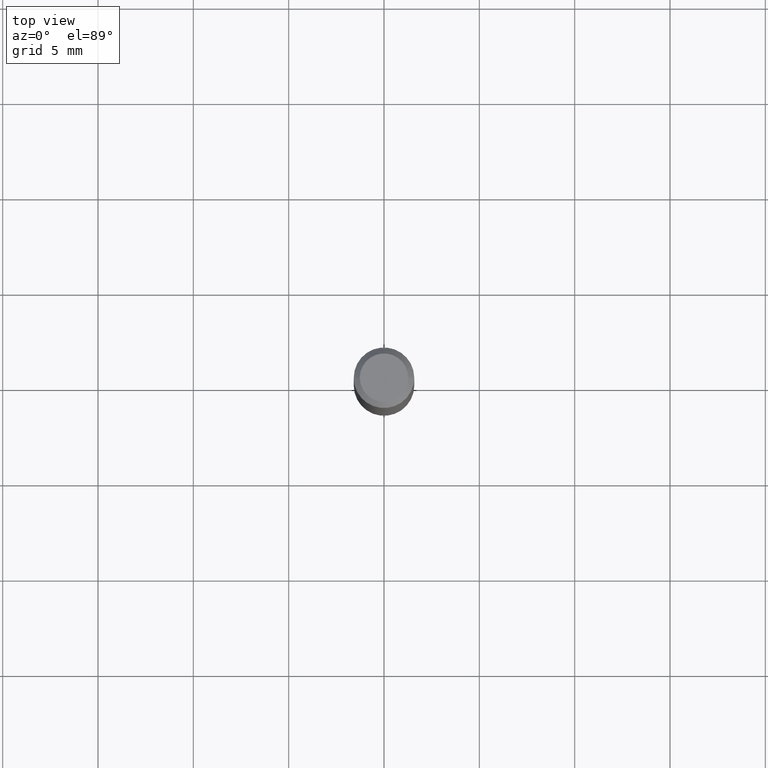
[diagram: clean part render]
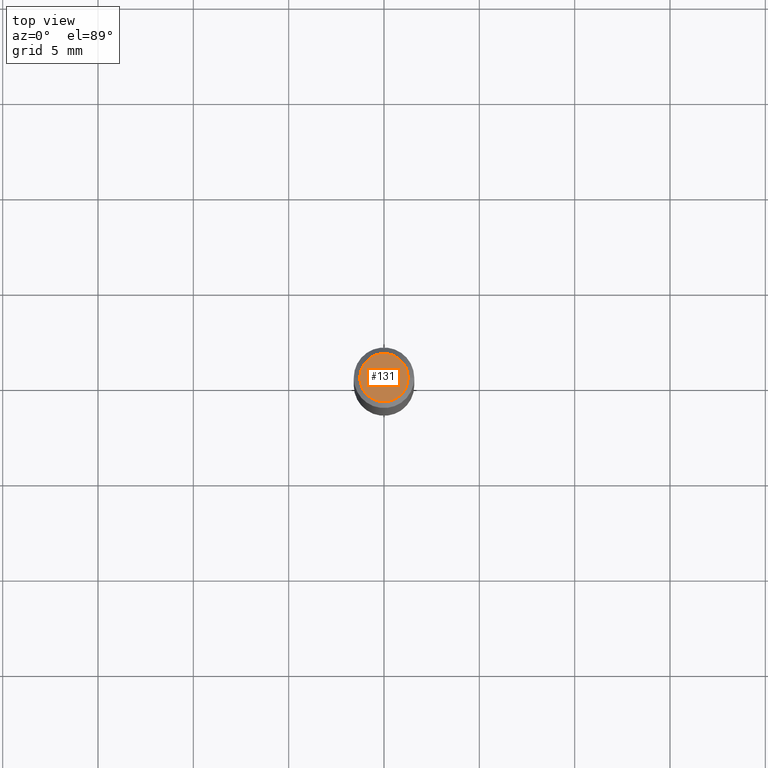
[diagram: same view with one face highlighted and labeled with its STEP entity id]
A machine part, top view. The second image highlights one B-rep face of the part: STEP entity #131.
In plain terms, the highlighted planar face has unit normal (0, -0, -1).
Its self-contained STEP definition (entity closure, byte-faithful):
#23 = CARTESIAN_POINT ( 'NONE',  ( 3.893286209682126177E-47, -5.558580879666067980E-33, -1.592040838891559689E-18 ) ) ;
#36 = FACE_OUTER_BOUND ( 'NONE', #268, .T. ) ;
#63 = DIRECTION ( 'NONE',  ( -2.445468806185136597E-29, 3.491481338843145583E-15, 1.000000000000000000 ) ) ;
#75 = PLANE ( 'NONE',  #266 ) ;
#89 = DIRECTION ( 'NONE',  ( 1.000000000000000000, -6.982962677686265922E-15, 4.875957971899673662E-29 ) ) ;
#118 = DIRECTION ( 'NONE',  ( 1.000000000000000000, -6.982962677686265922E-15, 4.875957971899673662E-29 ) ) ;
#131 = ADVANCED_FACE ( 'NONE', ( #36 ), #75, .F. ) ;
#150 = VERTEX_POINT ( 'NONE', #280 ) ;
#151 = AXIS2_PLACEMENT_3D ( 'NONE', #192, #396, #118 ) ;
#192 = CARTESIAN_POINT ( 'NONE',  ( 3.893286209682126177E-47, -5.558580879666067980E-33, -1.592040838891559689E-18 ) ) ;
#215 = CARTESIAN_POINT ( 'NONE',  ( 1.946643104841063088E-47, -2.779290439833033990E-33, -7.960204194457798443E-19 ) ) ;
#225 = ORIENTED_EDGE ( 'NONE', *, *, #239, .T. ) ;
#237 = AXIS2_PLACEMENT_3D ( 'NONE', #23, #63, #89 ) ;
#239 = EDGE_CURVE ( 'NONE', #150, #411, #408, .T. ) ;
#266 = AXIS2_PLACEMENT_3D ( 'NONE', #215, #304, #416 ) ;
#268 = EDGE_LOOP ( 'NONE', ( #225, #269 ) ) ;
#269 = ORIENTED_EDGE ( 'NONE', *, *, #330, .T. ) ;
#280 = CARTESIAN_POINT ( 'NONE',  ( -0.04999999999999999584, 3.709698922520826725E-16, -1.592040838894077649E-18 ) ) ;
#292 = CIRCLE ( 'NONE', #237, 0.04999999999999999584 ) ;
#304 = DIRECTION ( 'NONE',  ( 2.438088387897960049E-29, -3.491481338843145188E-15, -1.000000000000000000 ) ) ;
#330 = EDGE_CURVE ( 'NONE', #411, #150, #292, .T. ) ;
#396 = DIRECTION ( 'NONE',  ( -2.445468806185136597E-29, 3.491481338843145583E-15, 1.000000000000000000 ) ) ;
#397 = CARTESIAN_POINT ( 'NONE',  ( 0.04999999999999999584, -4.077247707424184212E-16, -1.592040838888913461E-18 ) ) ;
#408 = CIRCLE ( 'NONE', #151, 0.04999999999999999584 ) ;
#411 = VERTEX_POINT ( 'NONE', #397 ) ;
#416 = DIRECTION ( 'NONE',  ( -1.000000000000000000, 6.982962677686265922E-15, -4.876176775795935793E-29 ) ) ;